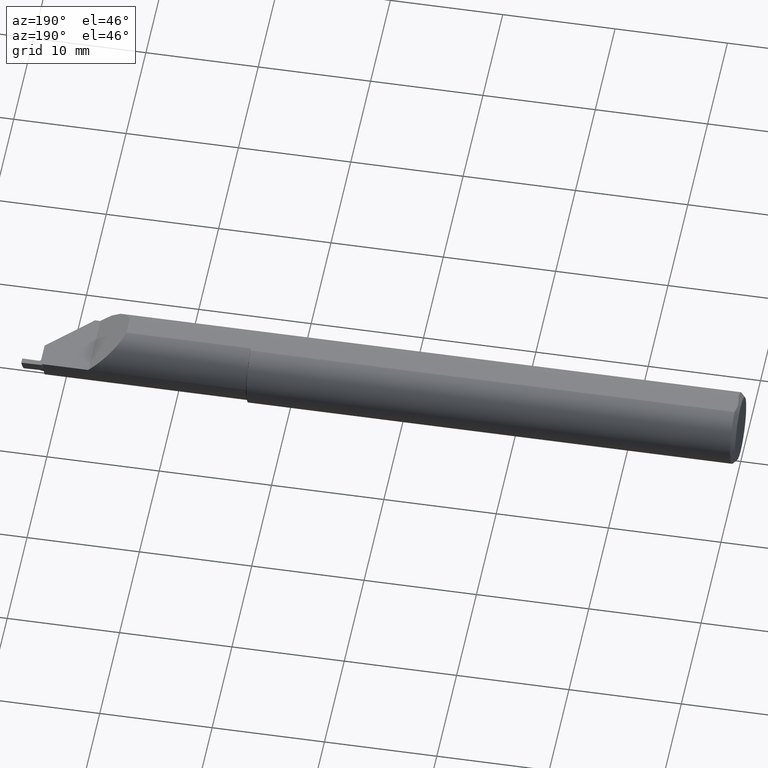
[diagram: clean part render]
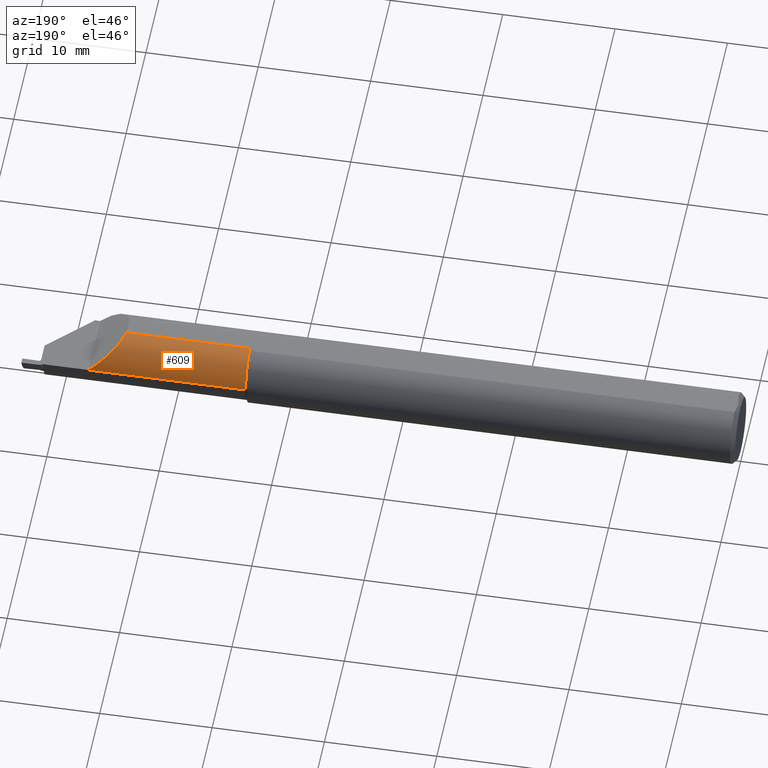
[diagram: same view with one face highlighted and labeled with its STEP entity id]
A machine part, auxiliary view. The second image highlights one B-rep face of the part: STEP entity #609.
In plain terms, the highlighted cylindrical surface (edge-blend (fillet) strip) has radius 3.175 mm, axis along (1, 0, -0).
Its self-contained STEP definition (entity closure, byte-faithful):
#19 = LINE ( 'NONE', #764, #166 ) ;
#61 = VERTEX_POINT ( 'NONE', #151 ) ;
#66 = ORIENTED_EDGE ( 'NONE', *, *, #131, .T. ) ;
#90 = VERTEX_POINT ( 'NONE', #744 ) ;
#121 = AXIS2_PLACEMENT_3D ( 'NONE', #456, #389, #793 ) ;
#131 = EDGE_CURVE ( 'NONE', #90, #61, #810, .T. ) ;
#142 = CARTESIAN_POINT ( 'NONE',  ( 2.430000000000000160, 0.1138492383597806412, 0.000000000000000000 ) ) ;
#151 = CARTESIAN_POINT ( 'NONE',  ( 2.265000000000000124, 0.1138355476100341018, 0.001850000000000401670 ) ) ;
#166 = VECTOR ( 'NONE', #226, 39.37007874015748143 ) ;
#183 = AXIS2_PLACEMENT_3D ( 'NONE', #862, #254, #659 ) ;
#226 = DIRECTION ( 'NONE',  ( -1.000000000000000000, -1.096770570373022412E-16, 0.000000000000000000 ) ) ;
#245 = AXIS2_PLACEMENT_3D ( 'NONE', #645, #860, #247 ) ;
#247 = DIRECTION ( 'NONE',  ( 0.000000000000000000, 1.000000000000000000, 0.000000000000000000 ) ) ;
#253 = EDGE_CURVE ( 'NONE', #90, #498, #19, .T. ) ;
#254 = DIRECTION ( 'NONE',  ( -1.000000000000000000, -0.000000000000000000, 0.000000000000000000 ) ) ;
#259 = EDGE_CURVE ( 'NONE', #721, #724, #760, .T. ) ;
#288 = ORIENTED_EDGE ( 'NONE', *, *, #253, .F. ) ;
#291 = ORIENTED_EDGE ( 'NONE', *, *, #627, .T. ) ;
#301 = CARTESIAN_POINT ( 'NONE',  ( 1.715000000000000080, 0.1138492383597805441, 0.000000000000000000 ) ) ;
#389 = DIRECTION ( 'NONE',  ( 1.000000000000000000, 1.096770570373022289E-16, -0.000000000000000000 ) ) ;
#449 = EDGE_CURVE ( 'NONE', #61, #724, #737, .T. ) ;
#456 = CARTESIAN_POINT ( 'NONE',  ( 1.715000000000000080, -0.01115076164021948195, 0.000000000000000000 ) ) ;
#462 = CARTESIAN_POINT ( 'NONE',  ( 2.165141516003344258, 0.08018262773649612041, 0.1017084839966559406 ) ) ;
#498 = VERTEX_POINT ( 'NONE', #842 ) ;
#531 = CARTESIAN_POINT ( 'NONE',  ( 2.209676106770552373, 0.1130166643012264355, 0.05717389322944788077 ) ) ;
#538 = CARTESIAN_POINT ( 'NONE',  ( 2.148000000000000131, 0.02757490814094780071, 0.1188499999999999973 ) ) ;
#586 = FACE_OUTER_BOUND ( 'NONE', #817, .T. ) ;
#594 = CARTESIAN_POINT ( 'NONE',  ( 2.265000000000000124, 0.1138492383597806273, 0.000000000000000000 ) ) ;
#600 = CYLINDRICAL_SURFACE ( 'NONE', #245, 0.1250000000000000555 ) ;
#609 = ADVANCED_FACE ( 'NONE', ( #586 ), #600, .T. ) ;
#627 = EDGE_CURVE ( 'NONE', #721, #498, #789, .T. ) ;
#631 = ORIENTED_EDGE ( 'NONE', *, *, #449, .T. ) ;
#645 = CARTESIAN_POINT ( 'NONE',  ( 2.430000000000000160, -0.01115076164021940389, 0.000000000000000000 ) ) ;
#659 = DIRECTION ( 'NONE',  ( 0.000000000000000000, 0.000000000000000000, -1.000000000000000000 ) ) ;
#715 = DIRECTION ( 'NONE',  ( 1.000000000000000000, 1.096770570373022412E-16, -0.000000000000000000 ) ) ;
#721 = VERTEX_POINT ( 'NONE', #301 ) ;
#724 = VERTEX_POINT ( 'NONE', #594 ) ;
#737 = CIRCLE ( 'NONE', #183, 0.1250000000000000555 ) ;
#744 = CARTESIAN_POINT ( 'NONE',  ( 2.148000000000000131, 0.02757490814094780071, 0.1188499999999999973 ) ) ;
#760 = LINE ( 'NONE', #142, #828 ) ;
#764 = CARTESIAN_POINT ( 'NONE',  ( 2.430000000000000160, 0.02757490814094789092, 0.1188499999999999973 ) ) ;
#789 = CIRCLE ( 'NONE', #121, 0.1250000000000000278 ) ;
#793 = DIRECTION ( 'NONE',  ( 0.000000000000000000, 1.000000000000000000, 0.000000000000000000 ) ) ;
#810 =( BOUNDED_CURVE ( )  B_SPLINE_CURVE ( 3, ( #538, #462, #531, #876 ),
 .UNSPECIFIED., .F., .F. ) 
 B_SPLINE_CURVE_WITH_KNOTS ( ( 4, 4 ),
 ( 3.456580965538229577, 4.697588440032756552 ),
 .UNSPECIFIED. ) 
 CURVE ( )  GEOMETRIC_REPRESENTATION_ITEM ( )  RATIONAL_B_SPLINE_CURVE ( ( 1.000000000000000000, 0.8757237762408390802, 0.8757237762408390802, 1.000000000000000000 ) ) 
 REPRESENTATION_ITEM ( '' )  );
#817 = EDGE_LOOP ( 'NONE', ( #843, #291, #288, #66, #631 ) ) ;
#828 = VECTOR ( 'NONE', #715, 39.37007874015748143 ) ;
#842 = CARTESIAN_POINT ( 'NONE',  ( 1.715000000000000080, 0.02757490814094757173, 0.1188500000000000528 ) ) ;
#843 = ORIENTED_EDGE ( 'NONE', *, *, #259, .F. ) ;
#860 = DIRECTION ( 'NONE',  ( 1.000000000000000000, 1.096770570373022289E-16, -0.000000000000000000 ) ) ;
#862 = CARTESIAN_POINT ( 'NONE',  ( 2.265000000000000124, -0.01115076164021942123, 0.000000000000000000 ) ) ;
#876 = CARTESIAN_POINT ( 'NONE',  ( 2.265000000000000124, 0.1138355476100341018, 0.001850000000000401670 ) ) ;